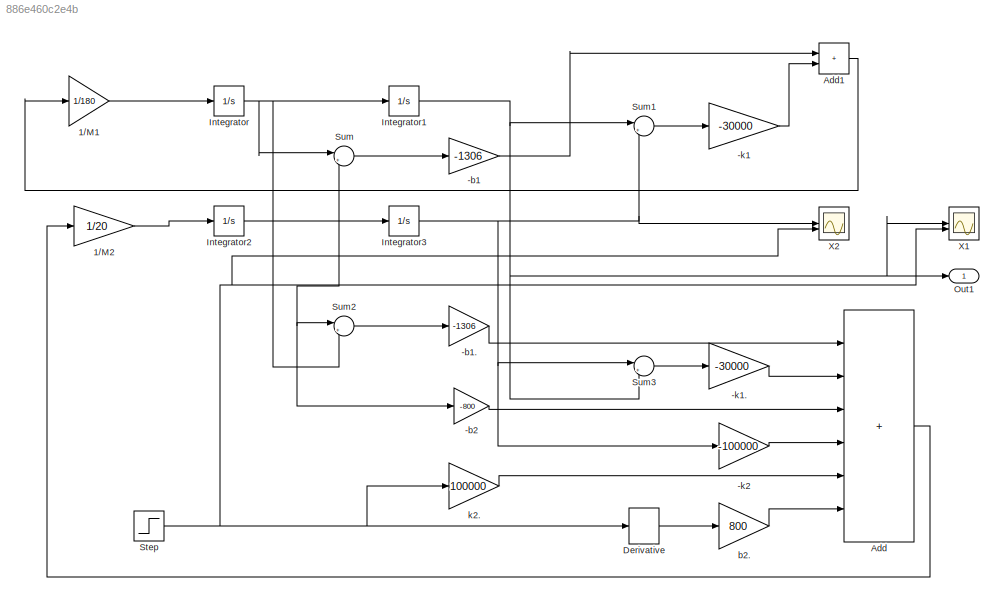
MODEL slx_886e460c2e4b
KIND model
CONFIG AbsTol = auto
CONFIG EnableMultiTasking = off
CONFIG FixedStep = auto
CONFIG MaxStep = auto
CONFIG MinStep = auto
CONFIG RelTol = 1e-3
CONFIG SampleTimeConstraint = Unconstrained
CONFIG SolverName = VariableStepAuto
CONFIG StartTime = 0.0
CONFIG StopTime = 15
BLOCK [Gain] -b1
  Gain = -1306
BLOCK [Gain] -b1.
  Gain = -1306
BLOCK [Gain] -b2
  Gain = -800
BLOCK [Gain] -k1
  Gain = -30000
BLOCK [Gain] -k1.
  Gain = -30000
BLOCK [Gain] -k2
  Gain = -100000
BLOCK [Gain] 1//M1
  Gain = 1/180
BLOCK [Gain] 1//M2
  Gain = 1/20
BLOCK [Sum] Add
  IconShape = rectangular
  Inputs = ++++++
BLOCK [Sum] Add1
  IconShape = rectangular
BLOCK [Derivative] Derivative
BLOCK [Integrator] Integrator
BLOCK [Integrator] Integrator1
BLOCK [Integrator] Integrator2
BLOCK [Integrator] Integrator3
BLOCK [Outport] Out1
  VectorParamsAs1DForOutWhenUnconnected = off
BLOCK [Step] Step
  SampleTime = 0
  Time = 5
BLOCK [Sum] Sum
  Inputs = |+-
BLOCK [Sum] Sum1
  Inputs = |+-
BLOCK [Sum] Sum2
  Inputs = |+-
BLOCK [Sum] Sum3
  Inputs = |+-
BLOCK [Scope] X1
  Floating = off
  NumInputPorts = 2
  ScopeSpecificationString = Simulink.scopes.TimeScopeBlockCfg('CurrentConfiguration', extmgr.ConfigurationSet(extmgr.Configuration('Core','General UI',true),extmgr.Configuration('Core','Source UI',true),extmgr.Configuration('Sources','WiredSimulink',true,'DataLoggingVariableName','ScopeData1'),extmgr.Configuration('Visuals','Time Domain',true,'SerializedDisplays',{struct('MinYLimReal','-0.20031','MaxYLimReal','1.80277','YLab...<+1466ch>
BLOCK [Scope] X2
  Floating = off
  NumInputPorts = 2
  ScopeSpecificationString = Simulink.scopes.TimeScopeBlockCfg('CurrentConfiguration', extmgr.ConfigurationSet(extmgr.Configuration('Core','General UI',true),extmgr.Configuration('Core','Source UI',true),extmgr.Configuration('Sources','WiredSimulink',true),extmgr.Configuration('Visuals','Time Domain',true,'SerializedDisplays',{struct('MinYLimReal','-0.03004','MaxYLimReal','0.11445','YLabelReal','','MinYLimMag','0.00000','MaxY...<+1437ch>
BLOCK [Gain] b2.
  Gain = 800
BLOCK [Gain] k2.
  Gain = 100000
LINE -b1.:1 -> Add:1
LINE -b1:1 -> Add1:1
LINE -b2:1 -> Add:3
LINE -k1.:1 -> Add:2
LINE -k1:1 -> Add1:2
LINE -k2:1 -> Add:4
LINE 1//M1:1 -> Integrator:1
LINE 1//M2:1 -> Integrator2:1
LINE Add1:1 -> 1//M1:1
LINE Add:1 -> 1//M2:1
LINE Derivative:1 -> b2.:1
NET Integrator1:1 -> Out1:1, Sum1:1, Sum3:2, X1:1
NET Integrator2:1 -> -b2:1, Integrator3:1, Sum2:1, Sum:2
NET Integrator3:1 -> -k2:1, Sum1:2, Sum3:1, X2:1
NET Integrator:1 -> Integrator1:1, Sum2:2, Sum:1
NET Step:1 -> Derivative:1, X1:2, X2:2, k2.:1
LINE Sum1:1 -> -k1:1
LINE Sum2:1 -> -b1.:1
LINE Sum3:1 -> -k1.:1
LINE Sum:1 -> -b1:1
LINE b2.:1 -> Add:6
LINE k2.:1 -> Add:5
note: NET lines group one-source signal fan-out (src -> all destinations, sorted); 1:1 wires keep LINE
